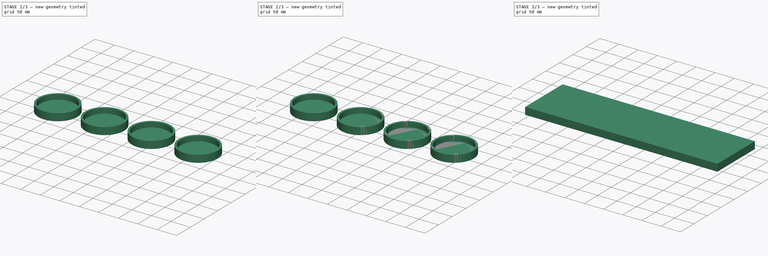
[diagram: build sequence overview — one tinted view per stage of 3, left to right]
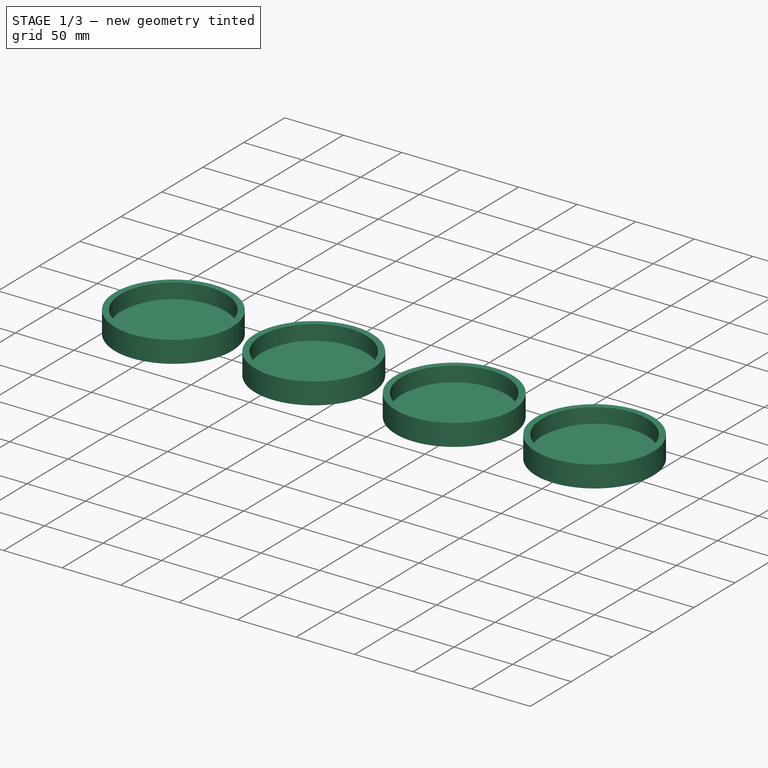
[diagram: stage 1 of 3 — iso view after this stage's code; geometry added in this stage tinted green]
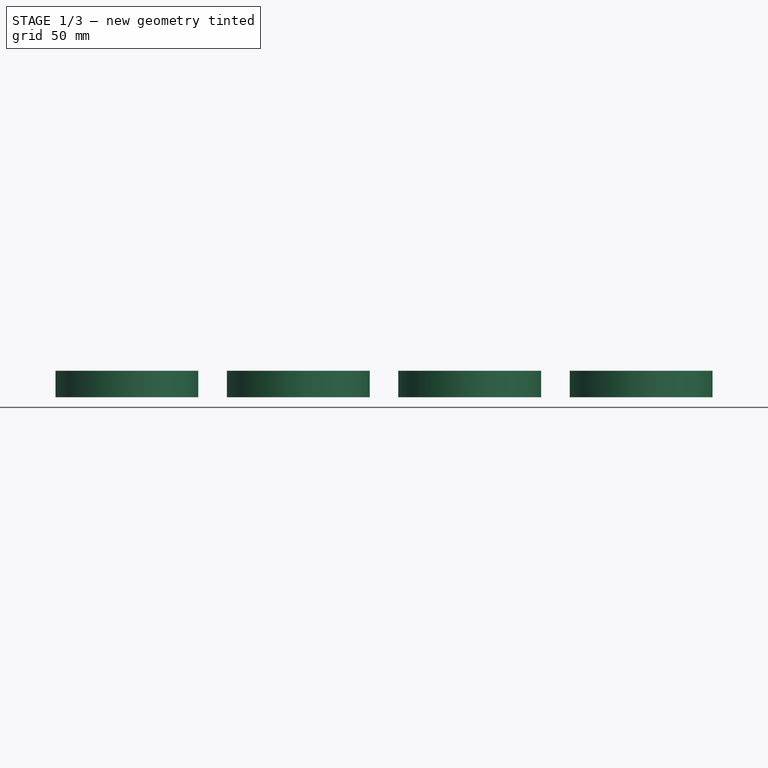
[diagram: stage 1 of 3 — front view after this stage's code; geometry added in this stage tinted green]
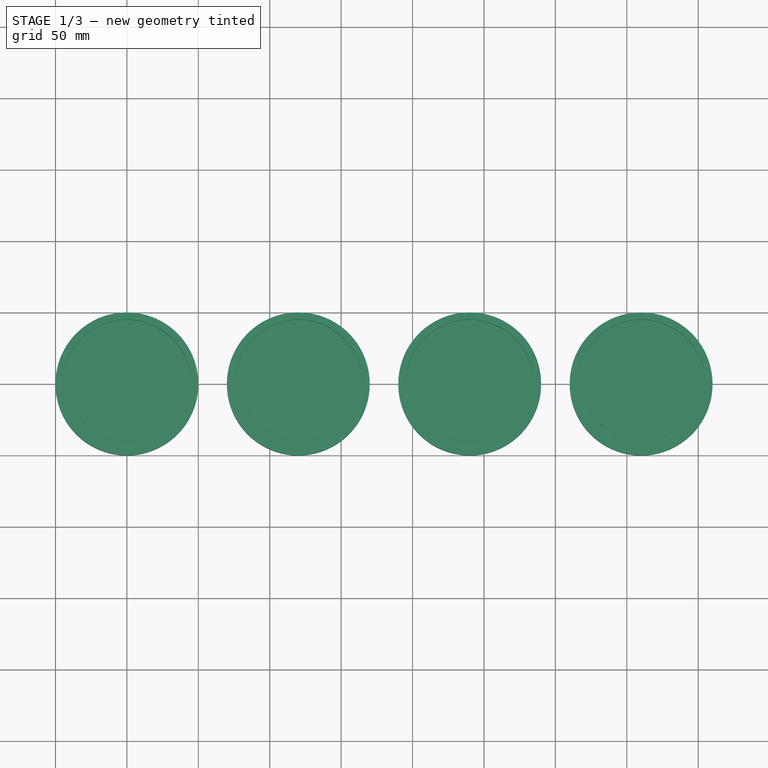
[diagram: stage 1 of 3 — top view after this stage's code; geometry added in this stage tinted green]
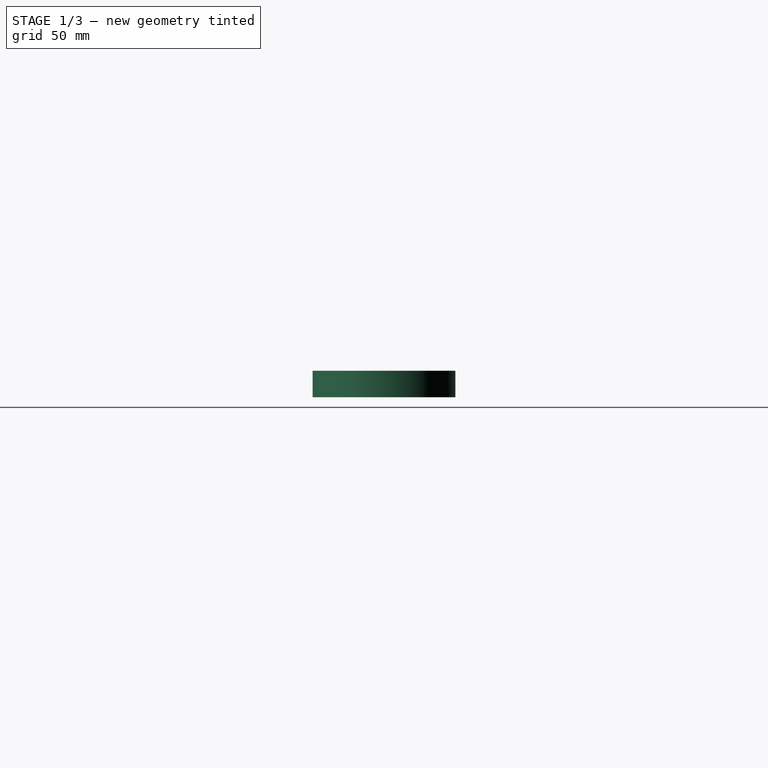
[diagram: stage 1 of 3 — right view after this stage's code; geometry added in this stage tinted green]
FCSTD DOCUMENT  (FreeCAD 0.19R21125 (Git))
Label: RoundCupLids
License: Creative Commons Attribution-ShareAlike
LicenseURL: http://creativecommons.org/licenses/by-sa/4.0/
objects: Path::FeaturePython×7, App::DocumentObjectGroup×4, Part::FeaturePython×4, Sketcher::SketchObject×1, PartDesign::Body×1, Part::Part2DObjectPython×1, PartDesign::Revolution×1, App::Part×1, App::FeaturePython×1, Path::FeatureCompoundPython×1
note: 11 computed .brp shape members not serialized (recipe doc carries the construction recipe); baked Part::Feature solids carry a one-line shape summary decoded from their .brp

FEATURE [Sketcher::SketchObject] Sketch  label="LidProfile_Master"
  Placement = pos=(0,0,0) rot=(1,0,0;1.5708rad)
  sketch-geometry (9):
    g0: LineSegment StartX=0 StartY=0 StartZ=0 EndX=-50 EndY=0 EndZ=0
    g1: LineSegment StartX=-50 StartY=0 StartZ=0 EndX=-50 EndY=18.5 EndZ=0
    g2: LineSegment StartX=-50 StartY=18.5 StartZ=0 EndX=-45 EndY=18.5 EndZ=0
    g3: LineSegment StartX=-45 StartY=18.5 StartZ=0 EndX=-45 EndY=5 EndZ=0
    g4: LineSegment StartX=-45 StartY=5 StartZ=0 EndX=-40 EndY=5 EndZ=0
    g5: LineSegment StartX=-40 StartY=5 StartZ=0 EndX=-40 EndY=8 EndZ=0
    g6: LineSegment StartX=0 StartY=8 StartZ=0 EndX=0 EndY=0 EndZ=0
    g7: LineSegment StartX=-40 StartY=8 StartZ=0 EndX=0 EndY=8 EndZ=0
    g8: LineSegment [constr] StartX=-45 StartY=5 StartZ=0 EndX=-45 EndY=0 EndZ=0
  constraints (26):
    c: PointOnObject(g0,g-1)
    c: Coincident(g0,g1)
    c: Vertical(g1)
    c: Coincident(g1,g2)
    c: Horizontal(g2)
    c: Coincident(g2,g3)
    c: Vertical(g3)
    c: Coincident(g3,g4)
    c: Coincident(g4,g5)
    c: Vertical(g5)
    c: Coincident(g6,g0)
    c: Vertical(g6)
    c: Coincident(g0,g-1)
    c: Coincident(g7,g5)
    c: Coincident(g7,g6)
    c: Horizontal(g7)
    c: DistanceY(g1,g1) = 18.5
    c: DistanceX(g2,g2) = 5
    c: Horizontal(g4)
    c: Equal(g2,g4)
    c: DistanceX(g2,g6) = 45
    c: Coincident(g8,g3)
    c: PointOnObject(g8,g0)
    c: Vertical(g8)
    c: Equal(g8,g2)
    c: DistanceY(g5,g5) = 3
FEATURE [App::DocumentObjectGroup] Group  label="MasterSketch"
  Group = -> [Sketch]
FEATURE [PartDesign::Body] Body  label="Lid_Body"
  Origin = -> Origin002
FEATURE [Part::Part2DObjectPython] Clone2D  label="LidProfile_Master (2D)"  # Draft 2D object (typed FeaturePython)
  Fuse = false
  Objects = -> [Sketch]
  Placement = pos=(0,0,0) rot=(1,0,0;1.5708rad)
  Scale = (1,1,1)
FEATURE [PartDesign::Revolution] Revolution
  Angle = 360
  Axis = (0,0,1)
  Base = (0,0,0)
  Placement = pos=(0,0,0) rot=(1,0,0;1.5708rad)
  Profile = -> Clone2D
  ReferenceAxis = -> Clone2D [V_Axis]
FEATURE [Part::FeaturePython] Array  # Draft array (typed FeaturePython)
  Angle = 360
  ArrayType = 0
  Axis = (0,0,1)
  Base = -> Revolution
  Center = (0,0,0)
  Fuse = false
  IntervalAxis = (0,0,0)
  IntervalX = (120,0,0)
  IntervalY = (0,100,0)
  IntervalZ = (0,0,100)
  NumberCircles = 2
  NumberPolar = 1
  NumberX = 4
  NumberY = 1
  NumberZ = 1
  RadialDistance = 1
  Symmetry = 1
  TangentialDistance = 1
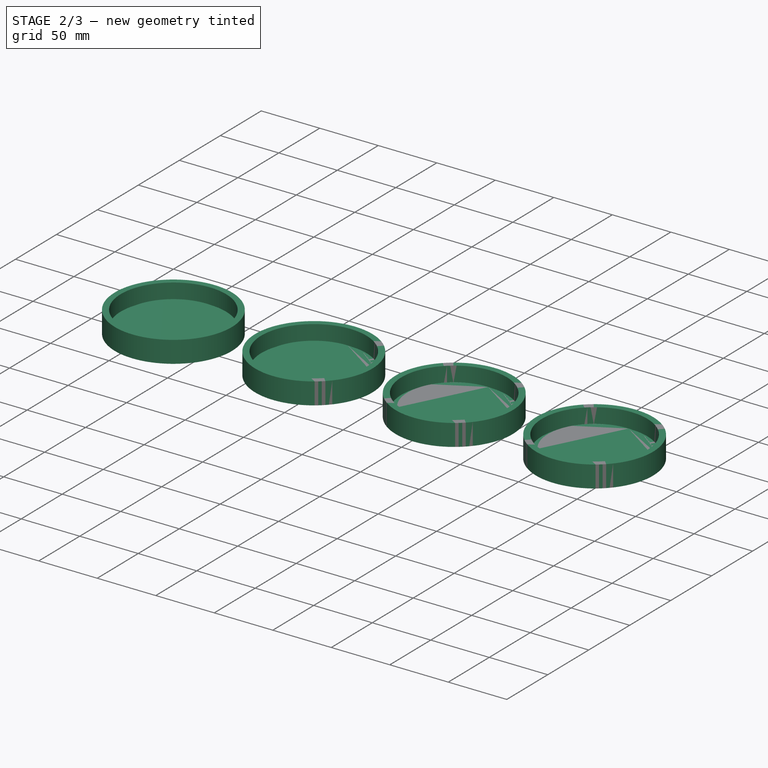
[diagram: stage 2 of 3 — iso view after this stage's code; geometry added in this stage tinted green]
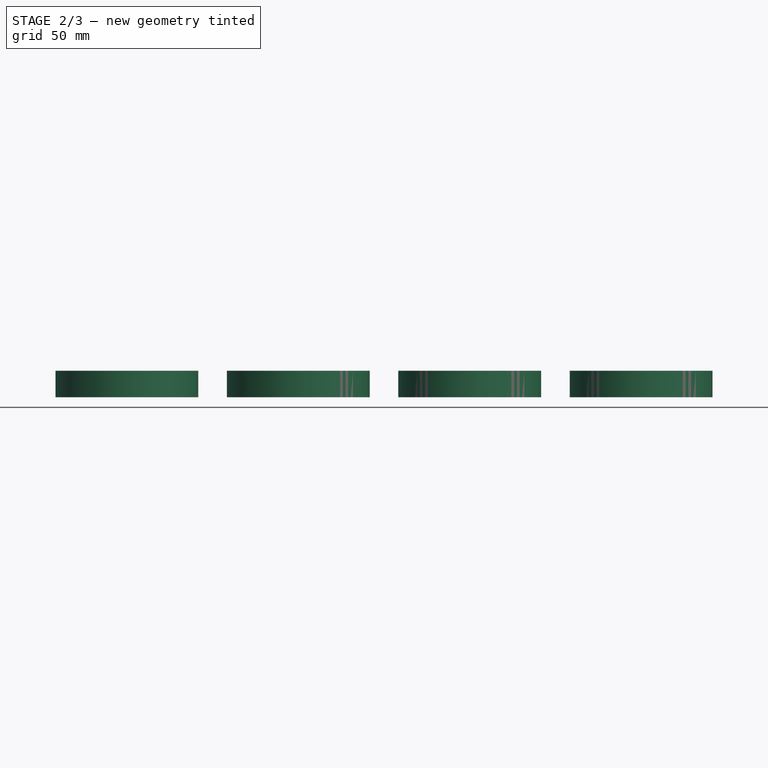
[diagram: stage 2 of 3 — front view after this stage's code; geometry added in this stage tinted green]
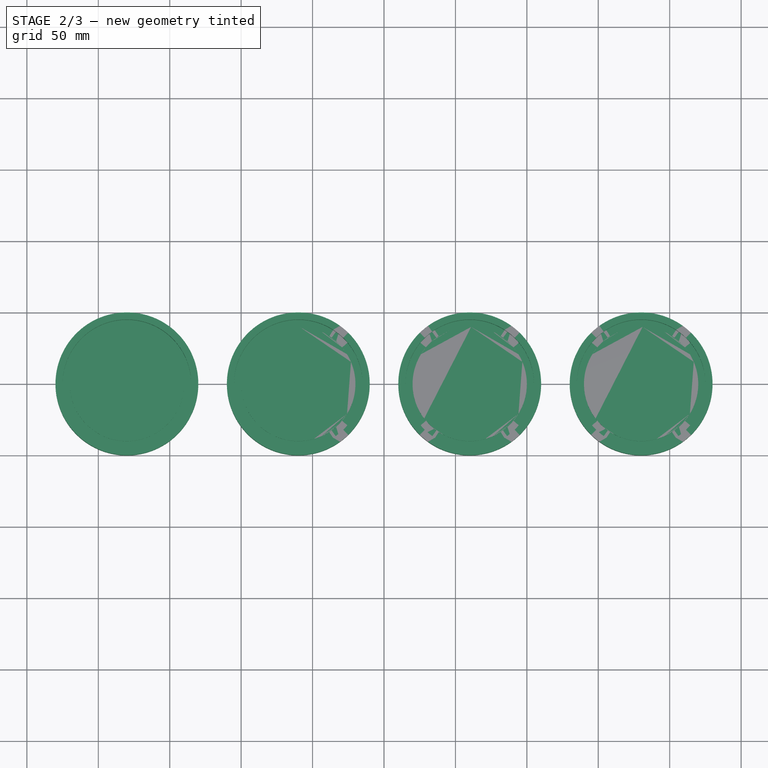
[diagram: stage 2 of 3 — top view after this stage's code; geometry added in this stage tinted green]
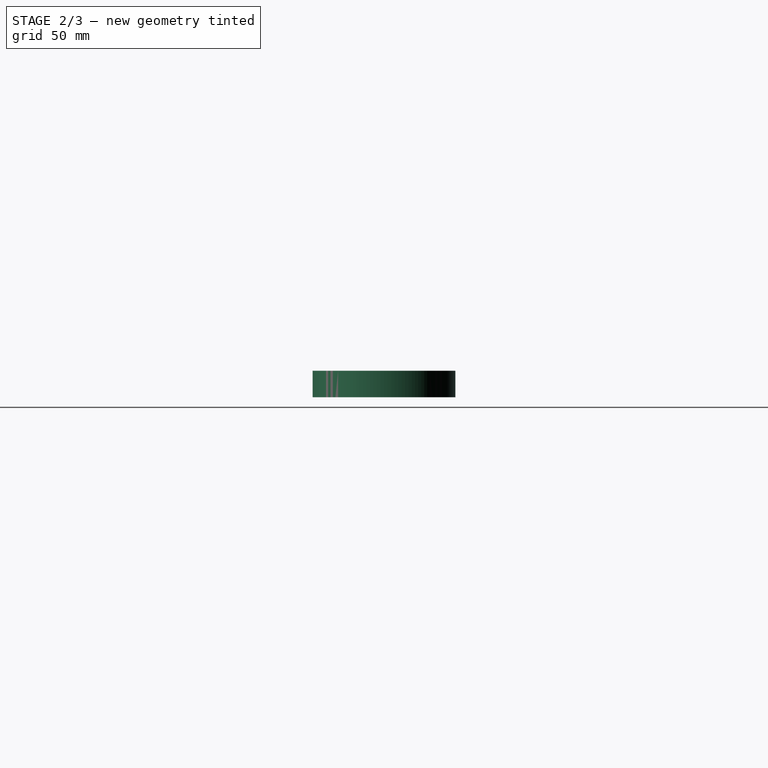
[diagram: stage 2 of 3 — right view after this stage's code; geometry added in this stage tinted green]
FEATURE [App::Part] Part001  label="Lid_Part"
  Group = -> [Body,Revolution,Clone2D,Array]
  Origin = -> Origin001
FEATURE [App::DocumentObjectGroup] Group001  label="Solids"
  Group = -> [Part001]
FEATURE [Part::FeaturePython] Clone  label="Array001"  # Draft clone (typed FeaturePython)
  AttacherType = Attacher::AttachEngine3D
  Fuse = false
  Objects = -> [Array]
  Placement = pos=(-180,0,0) rot=(0,0,1;0rad)
  Scale = (1,1,1)
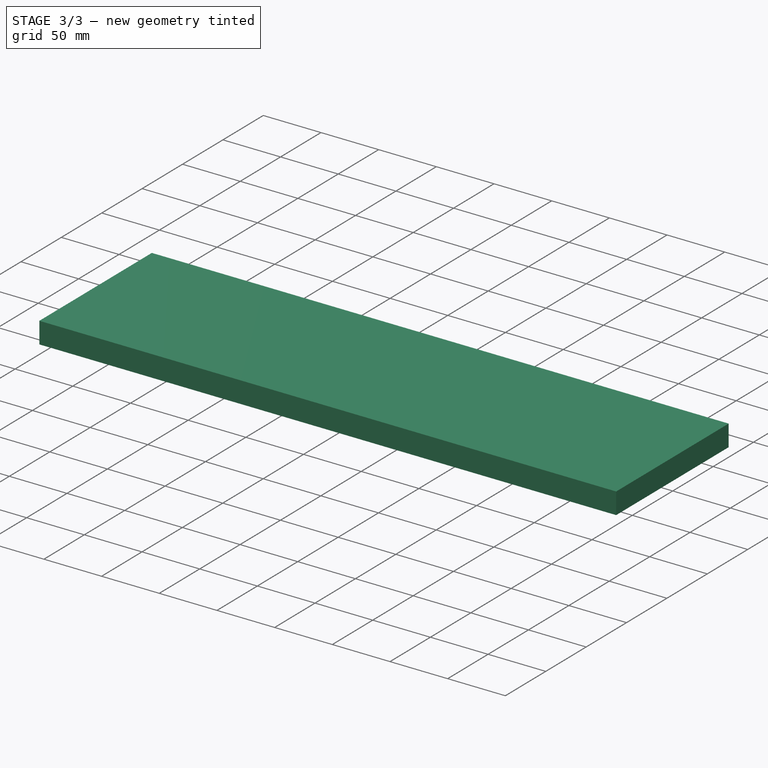
[diagram: stage 3 of 3 — iso view after this stage's code; geometry added in this stage tinted green]
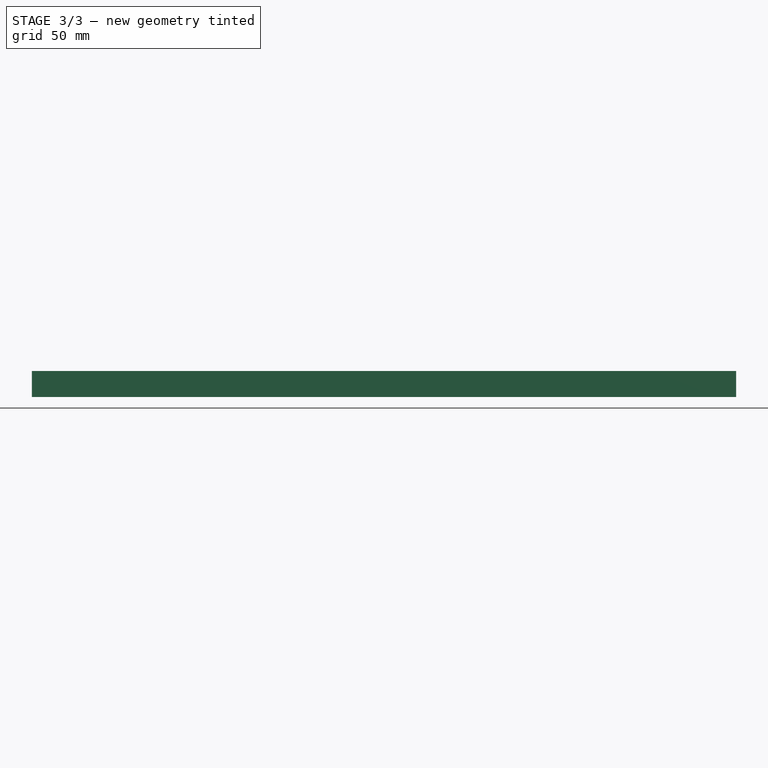
[diagram: stage 3 of 3 — front view after this stage's code; geometry added in this stage tinted green]
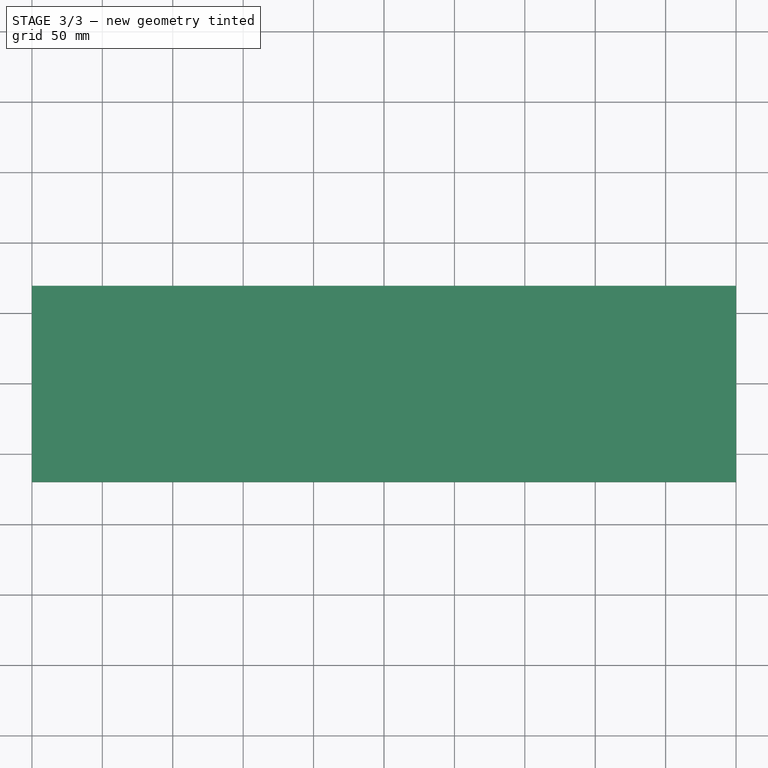
[diagram: stage 3 of 3 — top view after this stage's code; geometry added in this stage tinted green]
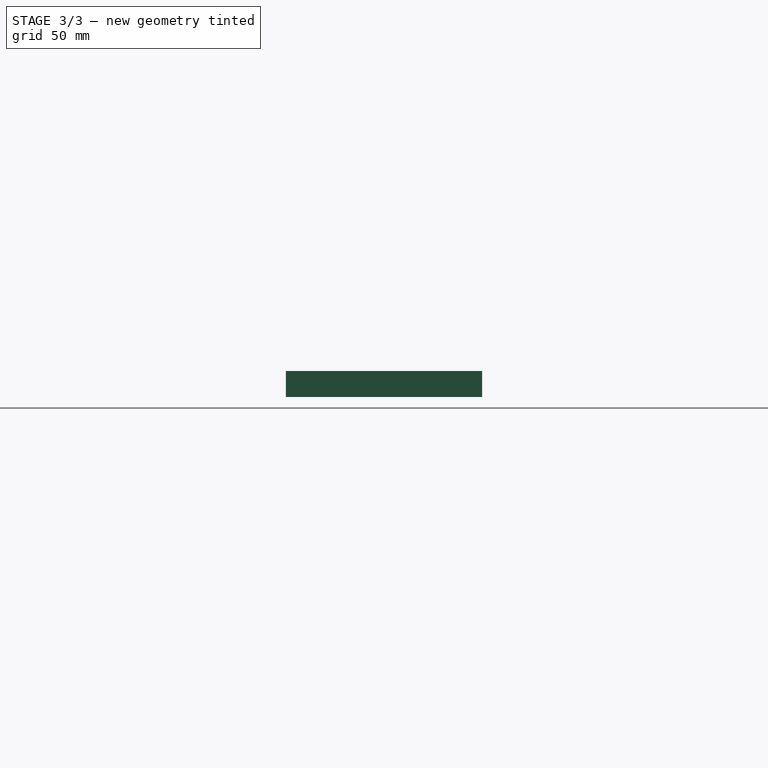
[diagram: stage 3 of 3 — right view after this stage's code; geometry added in this stage tinted green]
FEATURE [App::FeaturePython] SetupSheet  # Path/CAM operation (typed FeaturePython)
  ClearanceHeightExpression = OpStockZMax+SetupSheet.ClearanceHeightOffset
  ClearanceHeightOffset = 5
  CoolantMode = 0
  CoolantModes = None | Flood | Mist
  FinalDepthExpression = OpFinalDepth
  HorizRapid = 66.67
  SafeHeightExpression = OpStockZMax+SetupSheet.SafeHeightOffset
  SafeHeightOffset = 3
  StartDepthExpression = OpStartDepth
  StepDownExpression = OpToolDiameter / 6
  VertRapid = 16.66
FEATURE [Part::FeaturePython] Clone001  label="Model-Array001"  # Draft clone (typed FeaturePython)
  AttacherType = Attacher::AttachEngine3D
  Fuse = false
  Objects = -> [Clone]
  PathResource = Model
  Placement = pos=(-180,0,0) rot=(0,0,1;0rad)
  Scale = (1,1,1)
FEATURE [App::DocumentObjectGroup] Model
  Group = -> [Clone001]
FEATURE [Path::FeaturePython] T6__2FluteWoodMill001  label="T6: 2FluteWoodMill001"  # Path/CAM operation (typed FeaturePython)
  HorizFeed = 20
  HorizRapid = 66.67
  SpindleDir = 0
  SpindleSpeed = 14000
  ToolNumber = 6
  VertFeed = 16.66
  VertRapid = 16.66
  expr: HorizRapid = SetupSheet.HorizRapid
  expr: VertRapid = SetupSheet.VertRapid
FEATURE [Part::FeaturePython] Stock  # WARN: FeaturePython — macro-defined, semantics opaque (R4)
  Base = -> Model
  ExtXneg = 20
  ExtXpos = 20
  ExtYneg = 20
  ExtYpos = 20
  ExtZneg = 0
  ExtZpos = 0
  Placement = pos=(-230,-50,-1.1e-14) rot=(0,0,1;0rad)
  StockType = FromBase
FEATURE [Path::FeaturePython] Adaptive  # Path/CAM operation (typed FeaturePython)
  Active = true
  Base = -> [Clone001]
  ClearanceHeight = 23.5
  CoolantMode = None
  CycleTime = 01:14:54
  FinalDepth = 8.5
  FinishDepth = 0
  ForceInsideOut = false
  HelixAngle = 5
  HelixDiameterLimit = 0
  KeepToolDownRatio = 3
  LiftDistance = 0
  OpFinalDepth = 8
  OpStartDepth = 18.5
  OpStockZMax = 18.5
  OpStockZMin = -1.1e-14
  OpToolDiameter = 3.175
  OperationType = 0
  SafeHeight = 21.5
  Side = 1
  StartDepth = 18.5
  StepDown = 2
  StepOver = 50
  StockToLeave = 0
  StopProcessing = false
  Stopped = false
  Tolerance = 0.1
  ToolController = -> T6__2FluteWoodMill001
  UseHelixArcs = false
  expr: ClearanceHeight = OpStockZMax + SetupSheet.ClearanceHeightOffset
  expr: SafeHeight = OpStockZMax + SetupSheet.SafeHeightOffset
  expr: StepDown = 2mm
  expr: FinalDepth = OpFinalDepth + 0.5mm
  expr: StartDepth = OpStartDepth
FEATURE [Path::FeaturePython] Pocket_Shape  # Path/CAM operation (typed FeaturePython)
  Active = true
  AreaParams:
    Tolerance = 1e-07
    FitArcs = True
    Simplify = False
    CleanDistance = 0.0
    Accuracy = 0.01
    Unit = 1.0
    MinArcPoints = 4
    MaxArcPoints = 100
    ClipperScale = 10000000.0
    Fill = 0
    Coplanar = 0
    Reorient = True
    Outline = False
    Explode = False
    OpenMode = 0
    Deflection = 0.01
    SubjectFill = 0
    ClipFill = 0
    Offset = 0.0
    ExtraPass = 0
    Stepover = 0.0
    LastStepover = 0.0
    JoinType = 0
    EndType = 0
    MiterLimit = 2.0
    RoundPrecision = 0.0
    PocketMode = 2
    ToolRadius = 1.5875
    PocketExtraOffset = 0.0
    PocketStepover = 3.175
    PocketLastStepover = 0.0
    FromCenter = True
    Angle = 45.0
    AngleShift = 0.0
    Shift = 0.0
    Thicken = False
    SectionCount = -1
    Stepdown = 1.0
    SectionOffset = 0.0
    SectionTolerance = 1e-06
    SectionMode = 2
    Project = False
  AttemptInverseAngle = true
  Base = -> [Clone001]
  ClearanceHeight = 23.5
  CoolantMode = None
  CutMode = 0
  CycleTime = 00:36:22
  EnableRotation = 0
  ExtensionCorners = true
  ExtensionLengthDefault = 1.5875
  ExtraOffset = 0
  FinalDepth = 5
  FinishDepth = 0
  InverseAngle = false
  KeepToolDown = false
  LimitDepthToFace = true
  MinTravel = false
  OffsetPattern = 1
  OpFinalDepth = 5
  OpStartDepth = 18.5
  OpStockZMax = 18.5
  OpStockZMin = -1.1e-14
  OpToolDiameter = 3.175
  PathParams = {'orientation': 1, 'feedrate': 20.0, 'feedrate_v': 16.66, 'verbose': True, 'resume_height': 21.500000000000007, 'retraction': 23.500000000000007, 'return_end': True, 'preamble': False, 'start': Vector (138.5468750426086, 3.3357914814278806, 23.500000000000007)}
  ReverseDirection = false
  SafeHeight = 21.5
  StartAt = 0
  StartDepth = 18.5
  StartPoint = (0,0,0)
  StepDown = 1.05833
  StepOver = 100
  ToolController = -> T6__2FluteWoodMill001
  UseOutline = false
  UseStartPoint = false
  ZigZagAngle = 45
  expr: ExtensionLengthDefault = OpToolDiameter / 2
  expr: ClearanceHeight = OpStockZMax + SetupSheet.ClearanceHeightOffset
  expr: SafeHeight = OpStockZMax + SetupSheet.SafeHeightOffset
  expr: StepDown = OpToolDiameter / 3
  expr: FinalDepth = OpFinalDepth
  expr: StartDepth = OpStartDepth
FEATURE [Path::FeaturePython] Profile  # Path/CAM operation (typed FeaturePython)
  Active = true
  AreaParams:
    Tolerance = 1e-07
    FitArcs = True
    Simplify = False
    CleanDistance = 0.0
    Accuracy = 0.01
    Unit = 1.0
    MinArcPoints = 4
    MaxArcPoints = 100
    ClipperScale = 10000000.0
    Fill = 0
    Coplanar = 0
    Reorient = True
    Outline = False
    Explode = False
    OpenMode = 0
    Deflection = 0.01
    SubjectFill = 0
    ClipFill = 0
    Offset = 1.5875
    ExtraPass = 0
    Stepover = 0.0
    LastStepover = 0.0
    JoinType = 0
    EndType = 0
    MiterLimit = 2.0
    RoundPrecision = 0.0
    PocketMode = 0
    ToolRadius = 1.0
    PocketExtraOffset = 0.0
    PocketStepover = 0.0
    PocketLastStepover = 0.0
    FromCenter = False
    Angle = 45.0
    AngleShift = 0.0
    Shift = 0.0
    Thicken = False
    SectionCount = -1
    Stepdown = 1.0
    SectionOffset = 0.0
    SectionTolerance = 1e-06
    SectionMode = 2
    Project = False
  AttemptInverseAngle = true
  ClearanceHeight = 23.5
  CoolantMode = None
  CycleTime = 00:32:23
  Direction = 1
  EnableRotation = 0
  FinalDepth = -0.2
  HandleMultipleFeatures = 1
  InverseAngle = false
  JoinType = 0
  LimitDepthToFace = true
  MiterLimit = 0.1
  OffsetExtra = 0
  OpFinalDepth = -1.1e-14
  OpStartDepth = 18.5
  OpStockZMax = 18.5
  OpStockZMin = -1.1e-14
  OpToolDiameter = 3.175
  PathParams = {'orientation': 0, 'feedrate': 20.0, 'feedrate_v': 16.66, 'verbose': True, 'resume_height': 21.500000000000007, 'retraction': 23.500000000000007, 'return_end': True, 'preamble': False}
  ReverseDirection = false
  SafeHeight = 21.5
  Side = 0
  StartDepth = 18.5
  StartPoint = (0,0,0)
  StepDown = 0.529167
  ToolController = -> T6__2FluteWoodMill001
  UseComp = true
  UseStartPoint = false
  processCircles = false
  processHoles = false
  processPerimeter = true
  expr: ClearanceHeight = OpStockZMax + SetupSheet.ClearanceHeightOffset
  expr: SafeHeight = OpStockZMax + SetupSheet.SafeHeightOffset
  expr: StepDown = OpToolDiameter / 6
  expr: FinalDepth = OpFinalDepth - 0.2mm
  expr: StartDepth = OpStartDepth
FEATURE [Path::FeaturePython] DressupTag  # Path/CAM operation (typed FeaturePython)
  Angle = 60
  Base = -> Profile
  Height = 3
  Positions = (20) [(-207.35,43.7,0),(-144.84,37.74,0),(-140.85,-33.54,0),(-201.41,-46.91,0),(-231.33,-4.78,0),(-91.45,40.84,0),(-33.73,44.36,0),(-9.78,-11.68,0),+12 more]
  Radius = 0
  SegmentationFactor = 50
  Width = 4
FEATURE [Path::FeaturePython] Adaptive001  label="Adaptive_Refine"  # Path/CAM operation (typed FeaturePython)
  Active = true
  Base = -> [Clone001]
  ClearanceHeight = 23.5
  CoolantMode = None
  CycleTime = 00:29:04
  FinalDepth = 8
  FinishDepth = 0
  ForceInsideOut = false
  HelixAngle = 5
  HelixDiameterLimit = 0
  KeepToolDownRatio = 3
  LiftDistance = 0
  OpFinalDepth = 8
  OpStartDepth = 18.5
  OpStockZMax = 18.5
  OpStockZMin = -1.1e-14
  OpToolDiameter = 3.175
  OperationType = 0
  SafeHeight = 21.5
  Side = 1
  StartDepth = 8.5
  StepDown = 2
  StepOver = 20
  StockToLeave = 0
  StopProcessing = false
  Stopped = false
  Tolerance = 0.1
  ToolController = -> T6__2FluteWoodMill001
  UseHelixArcs = false
  expr: StartDepth = OpFinalDepth + 0.5mm
  expr: FinalDepth = OpFinalDepth
  expr: StepDown = 2mm
  expr: SafeHeight = OpStockZMax + SetupSheet.SafeHeightOffset
  expr: ClearanceHeight = OpStockZMax + SetupSheet.ClearanceHeightOffset
FEATURE [Path::FeatureCompoundPython] Operations  # Path/CAM operation (typed FeaturePython)
  Group = -> [Adaptive,Adaptive001,Pocket_Shape,DressupTag]
  UsePlacements = false
FEATURE [Path::FeaturePython] Job  # Path/CAM operation (typed FeaturePython)
  CycleTime = 02:52:43
  Fixtures = G54
  GeometryTolerance = 0.01
  Model = -> Model
  Operations = -> Operations
  OrderOutputBy = 0
  PostProcessor = 1
  PostProcessorArgs = --wait-for-spindle 5
  PostProcessorOutputFile = %D/gcode/%j.nc
  SetupSheet = -> SetupSheet
  SplitOutput = false
  Stock = -> Stock
  ToolController = -> [T6__2FluteWoodMill001]
FEATURE [App::DocumentObjectGroup] Group002  label="CNC"
  Group = -> [Clone,Job]
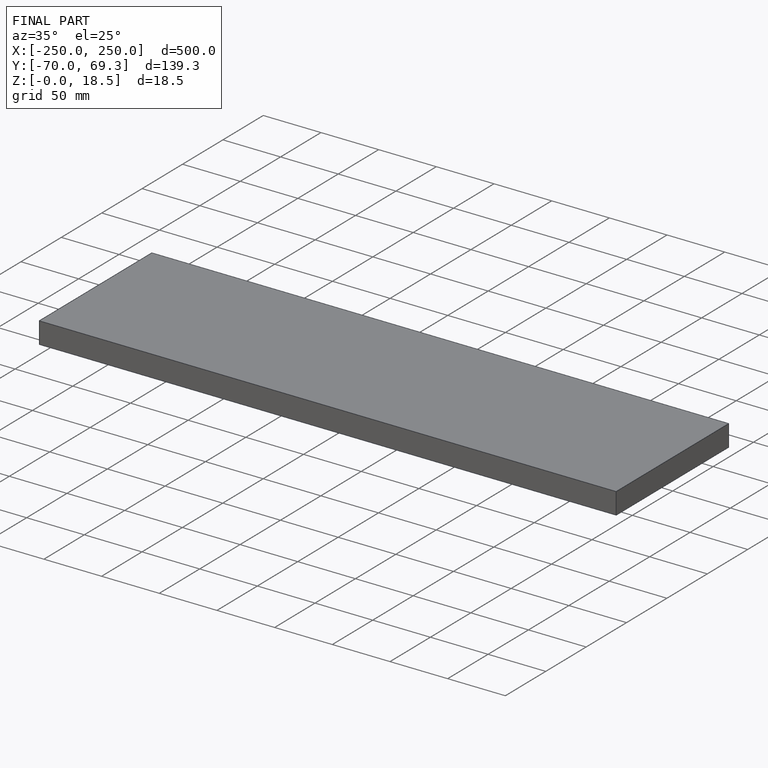
[diagram: finished part — iso view with bounding-box wireframe]
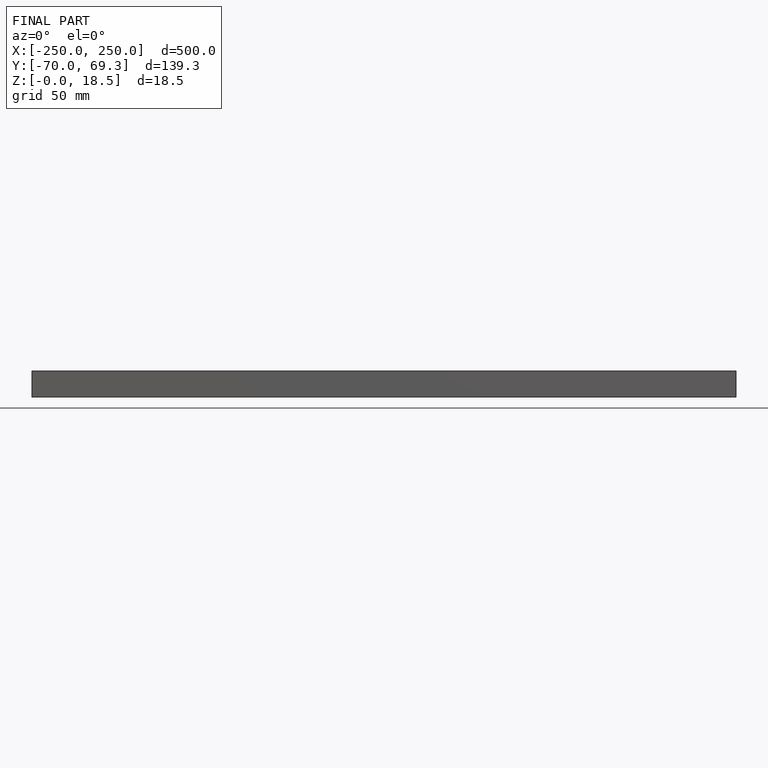
[diagram: finished part — front view with bounding-box wireframe]
